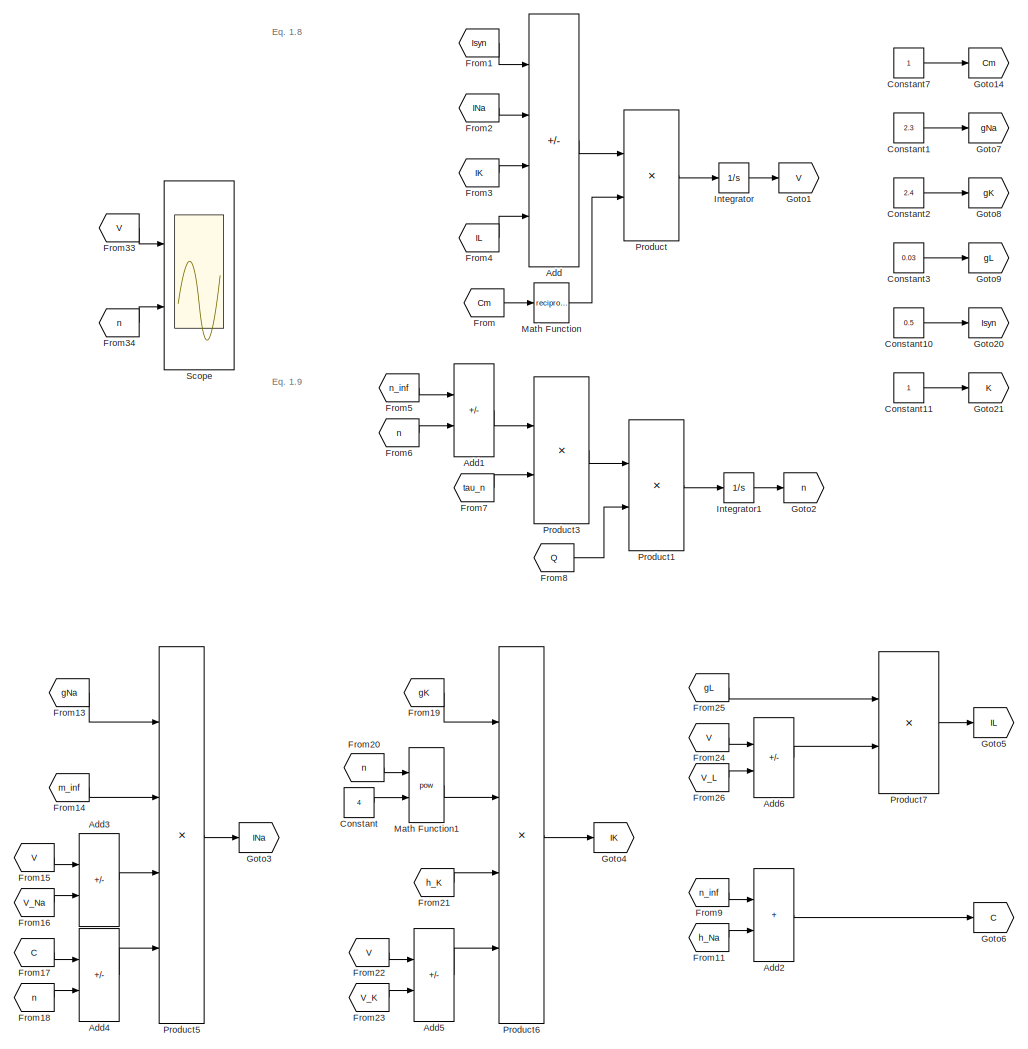
[diagram: root canvas - part 1/2, left side, full height]
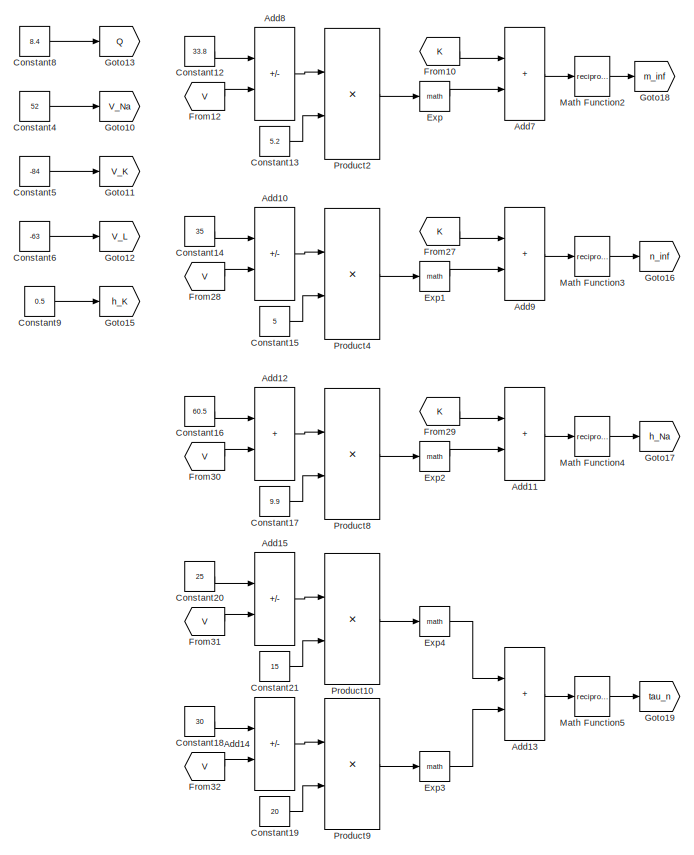
[diagram: root canvas - part 2/2, right side, full height]
MODEL slx_7535cc08ec05
KIND model
CONFIG AbsTol = auto
CONFIG EnableMultiTasking = off
CONFIG FixedStep = auto
CONFIG MaxStep = auto
CONFIG MinStep = auto
CONFIG RelTol = 1e-3
CONFIG SampleTimeConstraint = Unconstrained
CONFIG SolverName = VariableStepAuto
CONFIG StartTime = 15
CONFIG StopTime = 30
BLOCK [Sum] Add
  IconShape = rectangular
  Inputs = +---
  Ports = [4, 1]
BLOCK [Sum] Add1
  IconShape = rectangular
  Inputs = +-
  Ports = [2, 1]
BLOCK [Sum] Add10
  IconShape = rectangular
  Inputs = --
  Ports = [2, 1]
BLOCK [Sum] Add11
  IconShape = rectangular
  Ports = [2, 1]
BLOCK [Sum] Add12
  IconShape = rectangular
  Ports = [2, 1]
BLOCK [Sum] Add13
  IconShape = rectangular
  Ports = [2, 1]
BLOCK [Sum] Add14
  IconShape = rectangular
  Inputs = --
  Ports = [2, 1]
BLOCK [Sum] Add15
  IconShape = rectangular
  Inputs = --
  Ports = [2, 1]
BLOCK [Sum] Add2
  IconShape = rectangular
  Ports = [2, 1]
BLOCK [Sum] Add3
  IconShape = rectangular
  Inputs = +-
  Ports = [2, 1]
BLOCK [Sum] Add4
  IconShape = rectangular
  Inputs = +-
  Ports = [2, 1]
BLOCK [Sum] Add5
  IconShape = rectangular
  Inputs = +-
  Ports = [2, 1]
BLOCK [Sum] Add6
  IconShape = rectangular
  Inputs = +-
  Ports = [2, 1]
BLOCK [Sum] Add7
  IconShape = rectangular
  Ports = [2, 1]
BLOCK [Sum] Add8
  IconShape = rectangular
  Inputs = --
  Ports = [2, 1]
BLOCK [Sum] Add9
  IconShape = rectangular
  Ports = [2, 1]
BLOCK [Constant] Constant
  Value = 4
BLOCK [Constant] Constant1
  Value = 2.3
BLOCK [Constant] Constant10
  Value = 0.5
BLOCK [Constant] Constant11
BLOCK [Constant] Constant12
  Value = 33.8
BLOCK [Constant] Constant13
  Value = 5.2
BLOCK [Constant] Constant14
  Value = 35
BLOCK [Constant] Constant15
  Value = 5
BLOCK [Constant] Constant16
  Value = 60.5
BLOCK [Constant] Constant17
  Value = 9.9
BLOCK [Constant] Constant18
  Value = 30
BLOCK [Constant] Constant19
  Value = 20
BLOCK [Constant] Constant2
  Value = 2.4
BLOCK [Constant] Constant20
  Value = 25
BLOCK [Constant] Constant21
  Value = 15
BLOCK [Constant] Constant3
  Value = 0.03
BLOCK [Constant] Constant4
  Value = 52
BLOCK [Constant] Constant5
  Value = -84
BLOCK [Constant] Constant6
  Value = -63
BLOCK [Constant] Constant7
BLOCK [Constant] Constant8
  Value = 8.4
BLOCK [Constant] Constant9
  Value = 0.5
BLOCK [Math] Exp
  Ports = [1, 1]
BLOCK [Math] Exp1
  Ports = [1, 1]
BLOCK [Math] Exp2
  Ports = [1, 1]
BLOCK [Math] Exp3
  Ports = [1, 1]
BLOCK [Math] Exp4
  Ports = [1, 1]
BLOCK [From] From
  GotoTag = Cm
BLOCK [From] From1
  GotoTag = Isyn
BLOCK [From] From10
  GotoTag = K
BLOCK [From] From11
  GotoTag = h_Na
BLOCK [From] From12
  GotoTag = V
BLOCK [From] From13
  GotoTag = gNa
BLOCK [From] From14
  GotoTag = m_inf
BLOCK [From] From15
  GotoTag = V
BLOCK [From] From16
  GotoTag = V_Na
BLOCK [From] From17
  GotoTag = C
BLOCK [From] From18
  GotoTag = n
BLOCK [From] From19
  GotoTag = gK
BLOCK [From] From2
  GotoTag = INa
BLOCK [From] From20
  GotoTag = n
BLOCK [From] From21
  GotoTag = h_K
BLOCK [From] From22
  GotoTag = V
BLOCK [From] From23
  GotoTag = V_K
BLOCK [From] From24
  GotoTag = V
BLOCK [From] From25
  GotoTag = gL
BLOCK [From] From26
  GotoTag = V_L
BLOCK [From] From27
  GotoTag = K
BLOCK [From] From28
  GotoTag = V
BLOCK [From] From29
  GotoTag = K
BLOCK [From] From3
  GotoTag = IK
BLOCK [From] From30
  GotoTag = V
BLOCK [From] From31
  GotoTag = V
BLOCK [From] From32
  GotoTag = V
BLOCK [From] From33
  GotoTag = V
BLOCK [From] From34
  GotoTag = n
BLOCK [From] From4
  GotoTag = IL
BLOCK [From] From5
  GotoTag = n_inf
BLOCK [From] From6
  GotoTag = n
BLOCK [From] From7
  GotoTag = tau_n
BLOCK [From] From8
  GotoTag = Q
BLOCK [From] From9
  GotoTag = n_inf
BLOCK [Goto] Goto1
  GotoTag = V
BLOCK [Goto] Goto10
  GotoTag = V_Na
BLOCK [Goto] Goto11
  GotoTag = V_K
BLOCK [Goto] Goto12
  GotoTag = V_L
BLOCK [Goto] Goto13
  GotoTag = Q
BLOCK [Goto] Goto14
  GotoTag = Cm
BLOCK [Goto] Goto15
  GotoTag = h_K
BLOCK [Goto] Goto16
  GotoTag = n_inf
BLOCK [Goto] Goto17
  GotoTag = h_Na
BLOCK [Goto] Goto18
  GotoTag = m_inf
BLOCK [Goto] Goto19
  GotoTag = tau_n
BLOCK [Goto] Goto2
  GotoTag = n
BLOCK [Goto] Goto20
  GotoTag = Isyn
BLOCK [Goto] Goto21
  GotoTag = K
BLOCK [Goto] Goto3
  GotoTag = INa
BLOCK [Goto] Goto4
  GotoTag = IK
BLOCK [Goto] Goto5
  GotoTag = IL
BLOCK [Goto] Goto6
  GotoTag = C
BLOCK [Goto] Goto7
  GotoTag = gNa
BLOCK [Goto] Goto8
  GotoTag = gK
BLOCK [Goto] Goto9
  GotoTag = gL
BLOCK [Integrator] Integrator
  Ports = [1, 1]
BLOCK [Integrator] Integrator1
  Ports = [1, 1]
BLOCK [Math] Math Function
  Operator = reciprocal
  Ports = [1, 1]
  SignedPower = on
BLOCK [Math] Math Function1
  Operator = pow
  Ports = [2, 1]
  SignedPower = on
BLOCK [Math] Math Function2
  Operator = reciprocal
  Ports = [1, 1]
  SignedPower = on
BLOCK [Math] Math Function3
  Operator = reciprocal
  Ports = [1, 1]
  SignedPower = on
BLOCK [Math] Math Function4
  Operator = reciprocal
  Ports = [1, 1]
  SignedPower = on
BLOCK [Math] Math Function5
  Operator = reciprocal
  Ports = [1, 1]
  SignedPower = on
BLOCK [Product] Product
  Ports = [2, 1]
BLOCK [Product] Product1
  Ports = [2, 1]
BLOCK [Product] Product10
  Inputs = */
  Ports = [2, 1]
BLOCK [Product] Product2
  Inputs = */
  Ports = [2, 1]
BLOCK [Product] Product3
  Inputs = */
  Ports = [2, 1]
BLOCK [Product] Product4
  Inputs = */
  Ports = [2, 1]
BLOCK [Product] Product5
  Inputs = 4
  Ports = [4, 1]
BLOCK [Product] Product6
  Inputs = 4
  Ports = [4, 1]
BLOCK [Product] Product7
  Ports = [2, 1]
BLOCK [Product] Product8
  Inputs = */
  Ports = [2, 1]
BLOCK [Product] Product9
  Inputs = */
  Ports = [2, 1]
BLOCK [Scope] Scope
  Floating = off
  NumInputPorts = 2
  Ports = [2]
  ScopeSpecificationString = Simulink.scopes.TimeScopeBlockCfg('CurrentConfiguration', extmgr.ConfigurationSet(extmgr.Configuration('Core','General UI',true),extmgr.Configuration('Core','Source UI',true),extmgr.Configuration('Sources','WiredSimulink',true),extmgr.Configuration('Visuals','Time Domain',true,'SerializedDisplays',{struct('MinYLimReal','-41.42897','MaxYLimReal','34.61868','YLabelReal','','MinYLimMag','0.00000','Ma...<+2640ch>
ANNOTATION (root): Eq. 1.8
ANNOTATION (root): Eq. 1.9
LINE Add10:1 -> Product4:1
LINE Add11:1 -> Math Function4:1
LINE Add12:1 -> Product8:1
LINE Add13:1 -> Math Function5:1
LINE Add14:1 -> Product9:1
LINE Add15:1 -> Product10:1
LINE Add1:1 -> Product3:1
LINE Add2:1 -> Goto6:1
LINE Add3:1 -> Product5:3
LINE Add4:1 -> Product5:4
LINE Add5:1 -> Product6:4
LINE Add6:1 -> Product7:2
LINE Add7:1 -> Math Function2:1
LINE Add8:1 -> Product2:1
LINE Add9:1 -> Math Function3:1
LINE Add:1 -> Product:1
LINE Constant10:1 -> Goto20:1
LINE Constant11:1 -> Goto21:1
LINE Constant12:1 -> Add8:1
LINE Constant13:1 -> Product2:2
LINE Constant14:1 -> Add10:1
LINE Constant15:1 -> Product4:2
LINE Constant16:1 -> Add12:1
LINE Constant17:1 -> Product8:2
LINE Constant18:1 -> Add14:1
LINE Constant19:1 -> Product9:2
LINE Constant1:1 -> Goto7:1
LINE Constant20:1 -> Add15:1
LINE Constant21:1 -> Product10:2
LINE Constant2:1 -> Goto8:1
LINE Constant3:1 -> Goto9:1
LINE Constant4:1 -> Goto10:1
LINE Constant5:1 -> Goto11:1
LINE Constant6:1 -> Goto12:1
LINE Constant7:1 -> Goto14:1
LINE Constant8:1 -> Goto13:1
LINE Constant9:1 -> Goto15:1
LINE Constant:1 -> Math Function1:2
LINE Exp1:1 -> Add9:2
LINE Exp2:1 -> Add11:2
LINE Exp3:1 -> Add13:2
LINE Exp4:1 -> Add13:1
LINE Exp:1 -> Add7:2
LINE From10:1 -> Add7:1
LINE From11:1 -> Add2:2
LINE From12:1 -> Add8:2
LINE From13:1 -> Product5:1
LINE From14:1 -> Product5:2
LINE From15:1 -> Add3:1
LINE From16:1 -> Add3:2
LINE From17:1 -> Add4:1
LINE From18:1 -> Add4:2
LINE From19:1 -> Product6:1
LINE From1:1 -> Add:1
LINE From20:1 -> Math Function1:1
LINE From21:1 -> Product6:3
LINE From22:1 -> Add5:1
LINE From23:1 -> Add5:2
LINE From24:1 -> Add6:1
LINE From25:1 -> Product7:1
LINE From26:1 -> Add6:2
LINE From27:1 -> Add9:1
LINE From28:1 -> Add10:2
LINE From29:1 -> Add11:1
LINE From2:1 -> Add:2
LINE From30:1 -> Add12:2
LINE From31:1 -> Add15:2
LINE From32:1 -> Add14:2
LINE From33:1 -> Scope:1
LINE From34:1 -> Scope:2
LINE From3:1 -> Add:3
LINE From4:1 -> Add:4
LINE From5:1 -> Add1:1
LINE From6:1 -> Add1:2
LINE From7:1 -> Product3:2
LINE From8:1 -> Product1:2
LINE From9:1 -> Add2:1
LINE From:1 -> Math Function:1
LINE Integrator1:1 -> Goto2:1
LINE Integrator:1 -> Goto1:1
LINE Math Function1:1 -> Product6:2
LINE Math Function2:1 -> Goto18:1
LINE Math Function3:1 -> Goto16:1
LINE Math Function4:1 -> Goto17:1
LINE Math Function5:1 -> Goto19:1
LINE Math Function:1 -> Product:2
LINE Product10:1 -> Exp4:1
LINE Product1:1 -> Integrator1:1
LINE Product2:1 -> Exp:1
LINE Product3:1 -> Product1:1
LINE Product4:1 -> Exp1:1
LINE Product5:1 -> Goto3:1
LINE Product6:1 -> Goto4:1
LINE Product7:1 -> Goto5:1
LINE Product8:1 -> Exp2:1
LINE Product9:1 -> Exp3:1
LINE Product:1 -> Integrator:1
